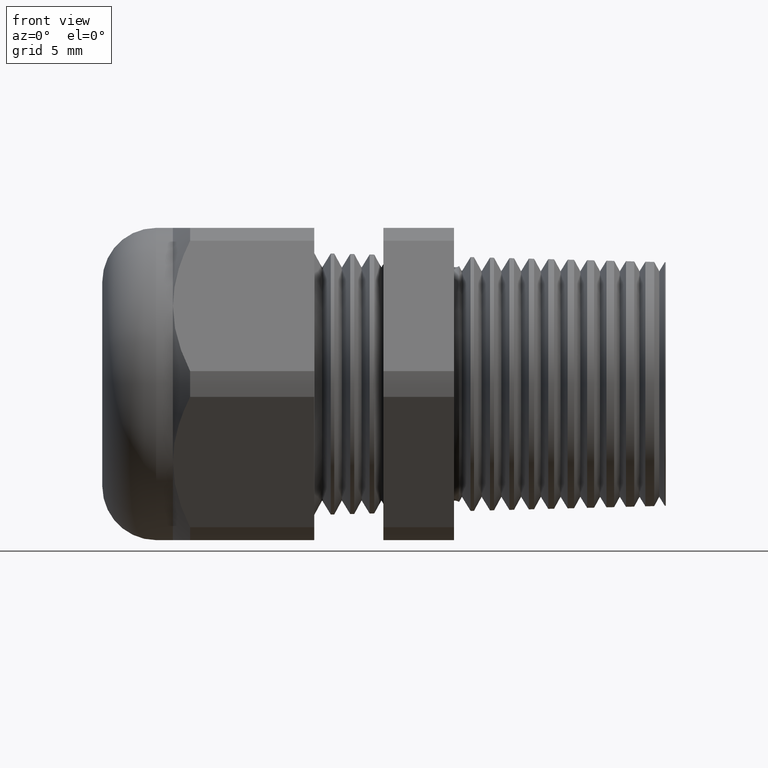
[diagram: clean part render]
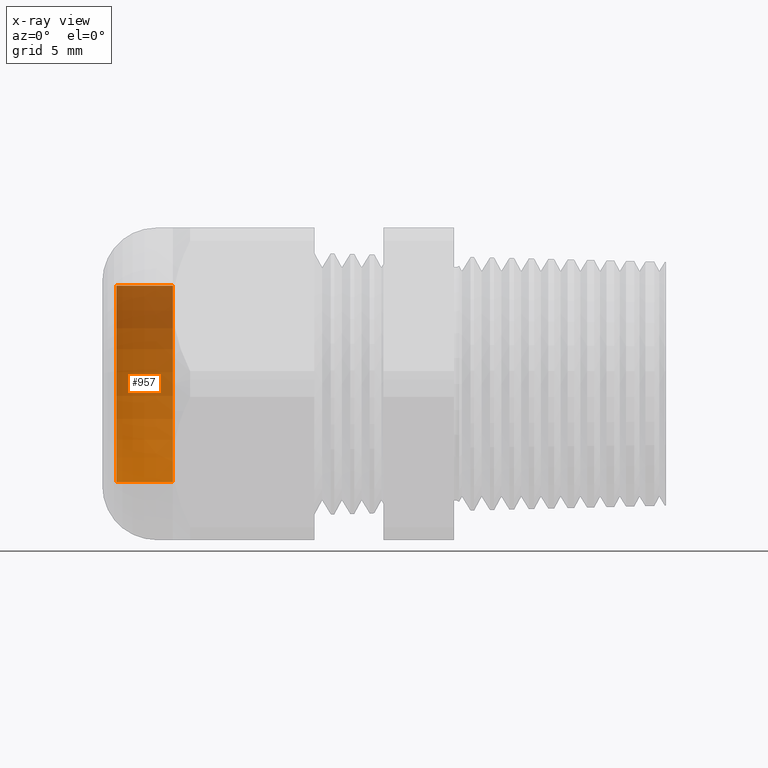
[diagram: x-ray — body ghosted, one internal face saturated and labeled with its STEP entity id]
A machine part, front view, then the same camera in x-ray: the body is ghosted and one INTERNAL B-rep face — a face not visible from any outside direction — is saturated and labeled: STEP entity #957.
In plain terms, the highlighted cylindrical surface (partial cylindrical patch) has radius 6.9532 mm, axis along (1, 0, 0).
Its self-contained STEP definition (entity closure, byte-faithful):
#870 = ORIENTED_EDGE ( 'NONE', *, *, #871, .F. ) ;
#871 = EDGE_CURVE ( 'NONE', #872, #969, #2696, .T. ) ;
#872 = VERTEX_POINT ( 'NONE', #2692 ) ;
#873 = ORIENTED_EDGE ( 'NONE', *, *, #973, .F. ) ;
#878 = VERTEX_POINT ( 'NONE', #2745 ) ;
#880 = EDGE_CURVE ( 'NONE', #881, #878, #2744, .T. ) ;
#881 = VERTEX_POINT ( 'NONE', #2739 ) ;
#957 = ADVANCED_FACE ( 'NONE', ( #2845 ), #2843, .T. ) ;
#958 = EDGE_LOOP ( 'NONE', ( #959, #967, #870, #873 ) ) ;
#959 = ORIENTED_EDGE ( 'NONE', *, *, #880, .T. ) ;
#967 = ORIENTED_EDGE ( 'NONE', *, *, #968, .T. ) ;
#968 = EDGE_CURVE ( 'NONE', #878, #969, #2893, .T. ) ;
#969 = VERTEX_POINT ( 'NONE', #2889 ) ;
#973 = EDGE_CURVE ( 'NONE', #881, #872, #2886, .T. ) ;
#2692 = CARTESIAN_POINT ( 'NONE',  ( -1.093149606299212500, 0.0000000000000000000, -0.2737499999999999900 ) ) ;
#2693 = DIRECTION ( 'NONE',  ( 0.0000000000000000000, 0.0000000000000000000, -1.000000000000000000 ) ) ;
#2694 = DIRECTION ( 'NONE',  ( 1.000000000000000000, 0.0000000000000000000, 0.0000000000000000000 ) ) ;
#2695 = AXIS2_PLACEMENT_3D ( 'NONE', #2701, #2694, #2693 ) ;
#2696 = CIRCLE ( 'NONE', #2695, 0.2737499999999999900 ) ;
#2701 = CARTESIAN_POINT ( 'NONE',  ( -1.093149606299212500, 0.0000000000000000000, 0.0000000000000000000 ) ) ;
#2739 = CARTESIAN_POINT ( 'NONE',  ( -1.250999999999999900, 0.0000000000000000000, -0.2737499999999999900 ) ) ;
#2740 = DIRECTION ( 'NONE',  ( 0.0000000000000000000, 0.0000000000000000000, -1.000000000000000000 ) ) ;
#2741 = DIRECTION ( 'NONE',  ( 1.000000000000000000, 0.0000000000000000000, 0.0000000000000000000 ) ) ;
#2742 = CARTESIAN_POINT ( 'NONE',  ( -1.250999999999999900, 0.0000000000000000000, 0.0000000000000000000 ) ) ;
#2743 = AXIS2_PLACEMENT_3D ( 'NONE', #2742, #2741, #2740 ) ;
#2744 = CIRCLE ( 'NONE', #2743, 0.2737499999999999900 ) ;
#2745 = CARTESIAN_POINT ( 'NONE',  ( -1.250999999999999900, 3.352470612665879100E-017, 0.2737499999999999900 ) ) ;
#2843 = CYLINDRICAL_SURFACE ( 'NONE', #2905, 0.2737499999999999900 ) ;
#2844 = CARTESIAN_POINT ( 'NONE',  ( 0.0000000000000000000, 0.0000000000000000000, 0.0000000000000000000 ) ) ;
#2845 = FACE_OUTER_BOUND ( 'NONE', #958, .T. ) ;
#2883 = DIRECTION ( 'NONE',  ( 1.000000000000000000, 0.0000000000000000000, 0.0000000000000000000 ) ) ;
#2884 = VECTOR ( 'NONE', #2883, 39.37007874015748100 ) ;
#2885 = CARTESIAN_POINT ( 'NONE',  ( 0.0000000000000000000, 0.0000000000000000000, -0.2737499999999999900 ) ) ;
#2886 = LINE ( 'NONE', #2885, #2884 ) ;
#2889 = CARTESIAN_POINT ( 'NONE',  ( -1.093149606299212500, 3.352470612665879100E-017, 0.2737499999999999900 ) ) ;
#2890 = DIRECTION ( 'NONE',  ( 1.000000000000000000, 0.0000000000000000000, 0.0000000000000000000 ) ) ;
#2891 = VECTOR ( 'NONE', #2890, 39.37007874015748100 ) ;
#2892 = CARTESIAN_POINT ( 'NONE',  ( 0.0000000000000000000, 3.352470612665879100E-017, 0.2737499999999999900 ) ) ;
#2893 = LINE ( 'NONE', #2892, #2891 ) ;
#2903 = DIRECTION ( 'NONE',  ( 0.0000000000000000000, 0.0000000000000000000, -1.000000000000000000 ) ) ;
#2904 = DIRECTION ( 'NONE',  ( 1.000000000000000000, 0.0000000000000000000, 0.0000000000000000000 ) ) ;
#2905 = AXIS2_PLACEMENT_3D ( 'NONE', #2844, #2904, #2903 ) ;